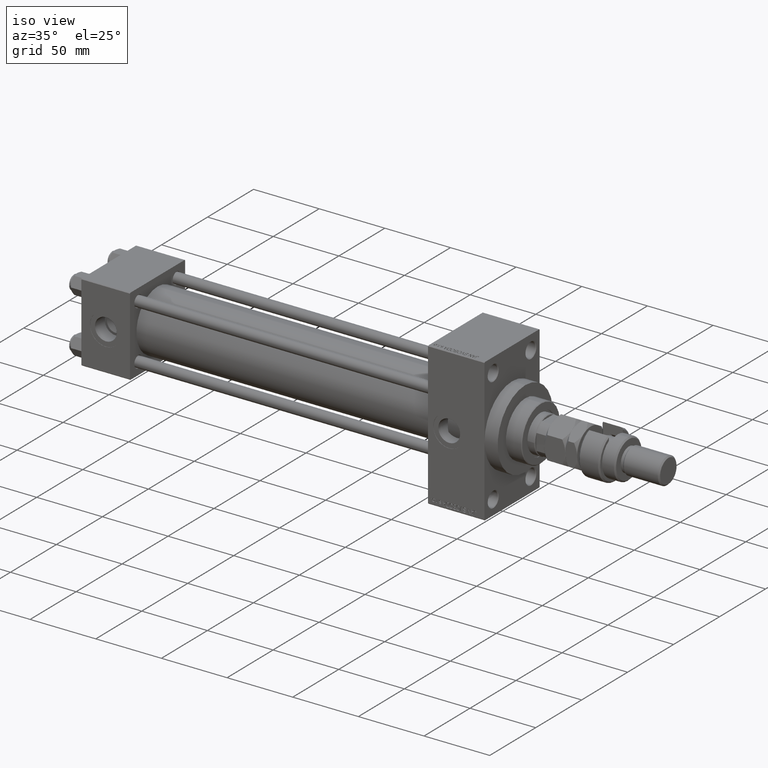
[diagram: clean part render]
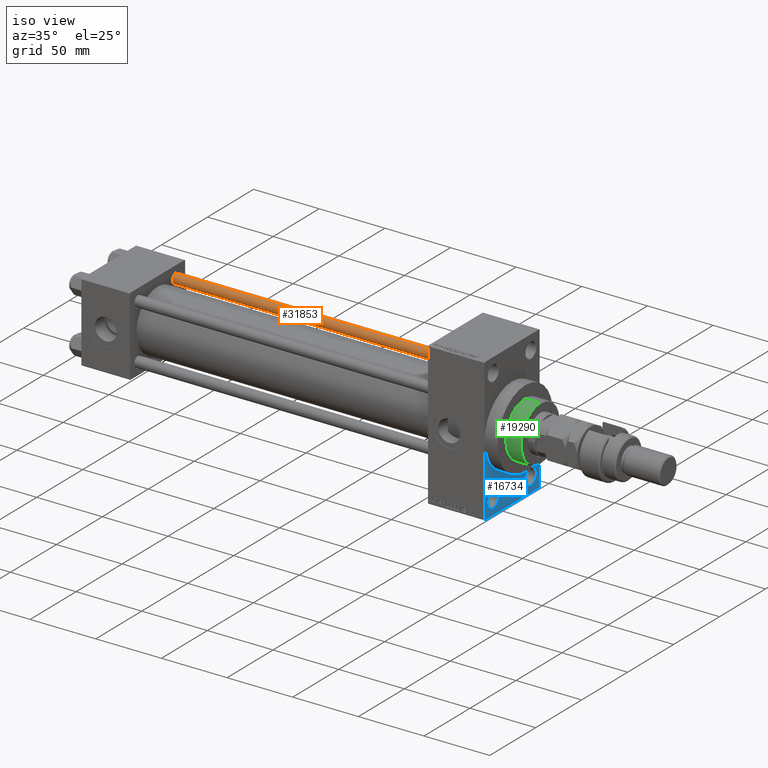
[diagram: same view with three faces highlighted in distinct colors, each labeled with its STEP entity id]
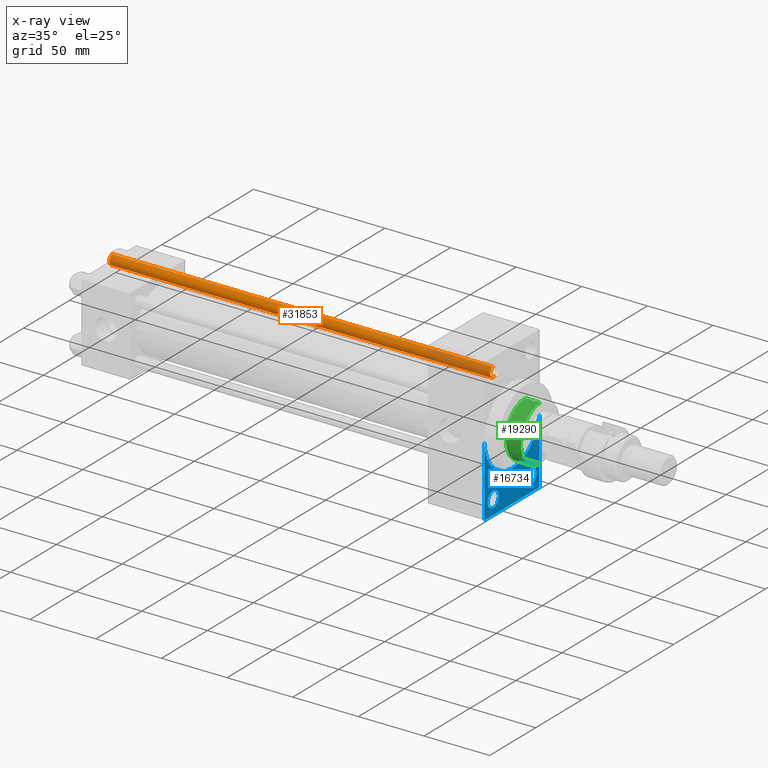
[diagram: x-ray of the same camera — body ghosted, the three highlighted faces saturated]
A machine part, iso view with three faces highlighted in distinct colors.
The next image is the same camera in x-ray (body ghosted, the three faces saturated) — at least one of them is partly hidden behind the body in this view.
Their STEP definitions:

[orange] entity #31853 — the highlighted cylindrical surface (edge-blend (fillet) strip) has radius 4 mm, axis along (-1, -0, 0).
#2759 = CARTESIAN_POINT ( 'NONE',  ( -4.000000000000000000, 0.000000000000000000, 291.0000000000000000 ) ) ;
#2951 = DIRECTION ( 'NONE',  ( -1.000000000000000000, 0.000000000000000000, 0.000000000000000000 ) ) ;
#5008 = ORIENTED_EDGE ( 'NONE', *, *, #33186, .T. ) ;
#6789 = EDGE_CURVE ( 'NONE', #36431, #42416, #36420, .T. ) ;
#10588 = FACE_OUTER_BOUND ( 'NONE', #19961, .T. ) ;
#11181 = LINE ( 'NONE', #2759, #19315 ) ;
#14183 = EDGE_CURVE ( 'NONE', #44750, #23287, #11181, .T. ) ;
#15136 = AXIS2_PLACEMENT_3D ( 'NONE', #21866, #21365, #37449 ) ;
#15359 = CARTESIAN_POINT ( 'NONE',  ( 4.000000000000000000, 4.898587196589412829E-16, 0.5000000000000559552 ) ) ;
#17653 = CIRCLE ( 'NONE', #15136, 4.000000000000000000 ) ;
#19315 = VECTOR ( 'NONE', #43071, 1000.000000000000000 ) ;
#19961 = EDGE_LOOP ( 'NONE', ( #45305, #5008, #47678, #26819 ) ) ;
#20053 = CARTESIAN_POINT ( 'NONE',  ( 4.000000000000000000, 4.898587196589412829E-16, 290.4999999999999432 ) ) ;
#20086 = DIRECTION ( 'NONE',  ( -0.000000000000000000, -0.000000000000000000, -1.000000000000000000 ) ) ;
#20848 = DIRECTION ( 'NONE',  ( 1.000000000000000000, 0.000000000000000000, 0.000000000000000000 ) ) ;
#21112 = CARTESIAN_POINT ( 'NONE',  ( 0.000000000000000000, 0.000000000000000000, 0.5000000000000559552 ) ) ;
#21365 = DIRECTION ( 'NONE',  ( 0.000000000000000000, 0.000000000000000000, -1.000000000000000000 ) ) ;
#21866 = CARTESIAN_POINT ( 'NONE',  ( 0.000000000000000000, 0.000000000000000000, 290.4999999999999432 ) ) ;
#22505 = CARTESIAN_POINT ( 'NONE',  ( -4.000000000000000000, 0.000000000000000000, 0.5000000000000559552 ) ) ;
#23287 = VERTEX_POINT ( 'NONE', #22505 ) ;
#24536 = DIRECTION ( 'NONE',  ( -0.000000000000000000, -0.000000000000000000, 1.000000000000000000 ) ) ;
#24959 = VECTOR ( 'NONE', #20086, 1000.000000000000000 ) ;
#26411 = DIRECTION ( 'NONE',  ( -0.000000000000000000, -0.000000000000000000, -1.000000000000000000 ) ) ;
#26819 = ORIENTED_EDGE ( 'NONE', *, *, #50252, .T. ) ;
#27762 = CARTESIAN_POINT ( 'NONE',  ( 4.000000000000000000, 4.898587196589412829E-16, 291.0000000000000000 ) ) ;
#30091 = AXIS2_PLACEMENT_3D ( 'NONE', #21112, #24536, #20848 ) ;
#31067 = AXIS2_PLACEMENT_3D ( 'NONE', #42221, #26411, #2951 ) ;
#31853 = ADVANCED_FACE ( 'NONE', ( #10588 ), #46173, .T. ) ;
#33186 = EDGE_CURVE ( 'NONE', #36431, #44750, #17653, .T. ) ;
#36420 = LINE ( 'NONE', #27762, #24959 ) ;
#36431 = VERTEX_POINT ( 'NONE', #20053 ) ;
#37449 = DIRECTION ( 'NONE',  ( 1.000000000000000000, 0.000000000000000000, 0.000000000000000000 ) ) ;
#37606 = CARTESIAN_POINT ( 'NONE',  ( -4.000000000000000000, 0.000000000000000000, 290.4999999999999432 ) ) ;
#42221 = CARTESIAN_POINT ( 'NONE',  ( 0.000000000000000000, 0.000000000000000000, 291.0000000000000000 ) ) ;
#42416 = VERTEX_POINT ( 'NONE', #15359 ) ;
#43071 = DIRECTION ( 'NONE',  ( -0.000000000000000000, -0.000000000000000000, -1.000000000000000000 ) ) ;
#44750 = VERTEX_POINT ( 'NONE', #37606 ) ;
#45305 = ORIENTED_EDGE ( 'NONE', *, *, #6789, .F. ) ;
#46072 = CIRCLE ( 'NONE', #30091, 4.000000000000000000 ) ;
#46173 = CYLINDRICAL_SURFACE ( 'NONE', #31067, 4.000000000000000000 ) ;
#47678 = ORIENTED_EDGE ( 'NONE', *, *, #14183, .T. ) ;
#50252 = EDGE_CURVE ( 'NONE', #23287, #42416, #46072, .T. ) ;

[blue] entity #16734 — the highlighted planar face has unit normal (-1, 0, 0).
#416 = EDGE_CURVE ( 'NONE', #17567, #20300, #18921, .T. ) ;
#634 = ORIENTED_EDGE ( 'NONE', *, *, #50058, .T. ) ;
#965 = DIRECTION ( 'NONE',  ( -1.000000000000000000, 0.000000000000000000, -0.000000000000000000 ) ) ;
#1076 = DIRECTION ( 'NONE',  ( -0.000000000000000000, 0.7071067811865474617, 0.7071067811865474617 ) ) ;
#1321 = EDGE_LOOP ( 'NONE', ( #22367, #634 ) ) ;
#2524 = DIRECTION ( 'NONE',  ( 1.000000000000000000, 0.000000000000000000, 0.000000000000000000 ) ) ;
#2809 = EDGE_CURVE ( 'NONE', #20724, #10635, #47017, .T. ) ;
#2884 = VERTEX_POINT ( 'NONE', #50533 ) ;
#3451 = ORIENTED_EDGE ( 'NONE', *, *, #35641, .T. ) ;
#3734 = DIRECTION ( 'NONE',  ( 0.000000000000000000, -1.000000000000000000, -1.156482317317871478E-16 ) ) ;
#4068 = AXIS2_PLACEMENT_3D ( 'NONE', #6998, #2524, #10429 ) ;
#4263 = CIRCLE ( 'NONE', #43849, 5.999999999999977796 ) ;
#4289 = EDGE_CURVE ( 'NONE', #13468, #35162, #35094, .T. ) ;
#4315 = VERTEX_POINT ( 'NONE', #38814 ) ;
#5265 = CARTESIAN_POINT ( 'NONE',  ( 307.0000000000000000, -20.50000000000000000, -43.50000000000000000 ) ) ;
#5432 = DIRECTION ( 'NONE',  ( 0.000000000000000000, 0.000000000000000000, 1.000000000000000000 ) ) ;
#6530 = CARTESIAN_POINT ( 'NONE',  ( 307.0000000000000000, 29.99999999999999645, 54.49999999999999289 ) ) ;
#6531 = DIRECTION ( 'NONE',  ( -0.000000000000000000, 0.000000000000000000, 1.000000000000000000 ) ) ;
#6908 = CARTESIAN_POINT ( 'NONE',  ( 307.0000000000000000, -20.50000000000000000, -49.49999999999997158 ) ) ;
#6976 = AXIS2_PLACEMENT_3D ( 'NONE', #23288, #30687, #51513 ) ;
#6998 = CARTESIAN_POINT ( 'NONE',  ( 307.0000000000000000, 0.000000000000000000, 0.000000000000000000 ) ) ;
#7178 = CARTESIAN_POINT ( 'NONE',  ( 307.0000000000000000, 20.50000000000000000, -43.50000000000000000 ) ) ;
#7179 = DIRECTION ( 'NONE',  ( 0.000000000000000000, 0.000000000000000000, 1.000000000000000000 ) ) ;
#7265 = CARTESIAN_POINT ( 'NONE',  ( 307.0000000000000000, -30.00000000000000000, 0.000000000000000000 ) ) ;
#7611 = ORIENTED_EDGE ( 'NONE', *, *, #23854, .F. ) ;
#9456 = CARTESIAN_POINT ( 'NONE',  ( 307.0000000000000000, 29.99999999999999645, -53.99999999999999289 ) ) ;
#9872 = CIRCLE ( 'NONE', #10707, 5.999999999999977796 ) ;
#10429 = DIRECTION ( 'NONE',  ( 0.000000000000000000, 0.000000000000000000, -1.000000000000000000 ) ) ;
#10510 = EDGE_CURVE ( 'NONE', #26507, #37665, #45293, .T. ) ;
#10624 = EDGE_CURVE ( 'NONE', #20724, #4315, #13312, .T. ) ;
#10635 = VERTEX_POINT ( 'NONE', #10946 ) ;
#10707 = AXIS2_PLACEMENT_3D ( 'NONE', #7178, #43015, #43542 ) ;
#10946 = CARTESIAN_POINT ( 'NONE',  ( 307.0000000000000000, -30.00000000000000000, -54.00000000000001421 ) ) ;
#11115 = CARTESIAN_POINT ( 'NONE',  ( 307.0000000000000000, 29.99999999999999645, -54.49999999999999289 ) ) ;
#11206 = ORIENTED_EDGE ( 'NONE', *, *, #2809, .T. ) ;
#12343 = AXIS2_PLACEMENT_3D ( 'NONE', #47517, #26432, #7179 ) ;
#12773 = CARTESIAN_POINT ( 'NONE',  ( 307.0000000000000000, -20.50000000000000000, -37.50000000000002132 ) ) ;
#13175 = CARTESIAN_POINT ( 'NONE',  ( 307.0000000000000000, 29.99999999999999645, -53.99999999999999289 ) ) ;
#13312 = CIRCLE ( 'NONE', #4068, 30.00000000000000000 ) ;
#13468 = VERTEX_POINT ( 'NONE', #24115 ) ;
#13563 = VECTOR ( 'NONE', #1076, 1000.000000000000114 ) ;
#13911 = FACE_BOUND ( 'NONE', #48513, .T. ) ;
#14421 = DIRECTION ( 'NONE',  ( -1.000000000000000000, 0.000000000000000000, -0.000000000000000000 ) ) ;
#15371 = CARTESIAN_POINT ( 'NONE',  ( 307.0000000000000000, -30.00000000000000000, 54.50000000000000000 ) ) ;
#16340 = DIRECTION ( 'NONE',  ( 0.000000000000000000, 0.000000000000000000, 1.000000000000000000 ) ) ;
#16734 = ADVANCED_FACE ( 'NONE', ( #13911, #50569, #30270 ), #42641, .F. ) ;
#16897 = VECTOR ( 'NONE', #40345, 1000.000000000000000 ) ;
#17030 = CARTESIAN_POINT ( 'NONE',  ( 307.0000000000000000, -20.50000000000000000, -43.50000000000000000 ) ) ;
#17100 = EDGE_CURVE ( 'NONE', #10635, #22114, #36395, .T. ) ;
#17182 = EDGE_CURVE ( 'NONE', #2884, #20300, #25317, .T. ) ;
#17567 = VERTEX_POINT ( 'NONE', #19686 ) ;
#18921 = LINE ( 'NONE', #6530, #50911 ) ;
#19202 = CARTESIAN_POINT ( 'NONE',  ( 307.0000000000000000, -29.50000000000002842, -54.50000000000000000 ) ) ;
#19663 = ORIENTED_EDGE ( 'NONE', *, *, #17182, .T. ) ;
#19686 = CARTESIAN_POINT ( 'NONE',  ( 307.0000000000000000, 30.00000000000000000, 0.000000000000000000 ) ) ;
#20300 = VERTEX_POINT ( 'NONE', #9456 ) ;
#20724 = VERTEX_POINT ( 'NONE', #7265 ) ;
#22114 = VERTEX_POINT ( 'NONE', #19202 ) ;
#22367 = ORIENTED_EDGE ( 'NONE', *, *, #4289, .T. ) ;
#22645 = ORIENTED_EDGE ( 'NONE', *, *, #43154, .F. ) ;
#23288 = CARTESIAN_POINT ( 'NONE',  ( 307.0000000000000000, 0.000000000000000000, 0.000000000000000000 ) ) ;
#23854 = EDGE_CURVE ( 'NONE', #2884, #22114, #35112, .T. ) ;
#24115 = CARTESIAN_POINT ( 'NONE',  ( 307.0000000000000000, 20.50000000000000000, -49.49999999999997158 ) ) ;
#24262 = CARTESIAN_POINT ( 'NONE',  ( 307.0000000000000000, -29.50000000000002842, -54.50000000000000000 ) ) ;
#25317 = LINE ( 'NONE', #13175, #13563 ) ;
#25747 = VECTOR ( 'NONE', #35164, 1000.000000000000000 ) ;
#26432 = DIRECTION ( 'NONE',  ( -1.000000000000000000, 0.000000000000000000, -0.000000000000000000 ) ) ;
#26507 = VERTEX_POINT ( 'NONE', #12773 ) ;
#29321 = AXIS2_PLACEMENT_3D ( 'NONE', #17030, #965, #5432 ) ;
#30270 = FACE_OUTER_BOUND ( 'NONE', #31413, .T. ) ;
#30687 = DIRECTION ( 'NONE',  ( 1.000000000000000000, 0.000000000000000000, 0.000000000000000000 ) ) ;
#31413 = EDGE_LOOP ( 'NONE', ( #11206, #43262, #7611, #19663, #50915, #22645, #32106 ) ) ;
#32106 = ORIENTED_EDGE ( 'NONE', *, *, #10624, .F. ) ;
#35094 = CIRCLE ( 'NONE', #12343, 5.999999999999977796 ) ;
#35112 = LINE ( 'NONE', #11115, #40628 ) ;
#35162 = VERTEX_POINT ( 'NONE', #44916 ) ;
#35164 = DIRECTION ( 'NONE',  ( 0.000000000000000000, 0.000000000000000000, -1.000000000000000000 ) ) ;
#35641 = EDGE_CURVE ( 'NONE', #37665, #26507, #4263, .T. ) ;
#36274 = AXIS2_PLACEMENT_3D ( 'NONE', #46339, #14421, #6531 ) ;
#36395 = LINE ( 'NONE', #24262, #16897 ) ;
#36581 = ORIENTED_EDGE ( 'NONE', *, *, #10510, .T. ) ;
#37665 = VERTEX_POINT ( 'NONE', #6908 ) ;
#38814 = CARTESIAN_POINT ( 'NONE',  ( 307.0000000000000000, 3.673940397442059178E-15, -30.00000000000000000 ) ) ;
#40345 = DIRECTION ( 'NONE',  ( 0.000000000000000000, 0.7071067811865352493, -0.7071067811865597852 ) ) ;
#40628 = VECTOR ( 'NONE', #3734, 1000.000000000000000 ) ;
#42641 = PLANE ( 'NONE',  #36274 ) ;
#43015 = DIRECTION ( 'NONE',  ( -1.000000000000000000, 0.000000000000000000, -0.000000000000000000 ) ) ;
#43154 = EDGE_CURVE ( 'NONE', #4315, #17567, #51627, .T. ) ;
#43164 = DIRECTION ( 'NONE',  ( 0.000000000000000000, 0.000000000000000000, -1.000000000000000000 ) ) ;
#43262 = ORIENTED_EDGE ( 'NONE', *, *, #17100, .T. ) ;
#43542 = DIRECTION ( 'NONE',  ( 0.000000000000000000, 0.000000000000000000, 1.000000000000000000 ) ) ;
#43849 = AXIS2_PLACEMENT_3D ( 'NONE', #5265, #45055, #16340 ) ;
#44916 = CARTESIAN_POINT ( 'NONE',  ( 307.0000000000000000, 20.50000000000000000, -37.50000000000002132 ) ) ;
#45055 = DIRECTION ( 'NONE',  ( -1.000000000000000000, 0.000000000000000000, -0.000000000000000000 ) ) ;
#45293 = CIRCLE ( 'NONE', #29321, 5.999999999999977796 ) ;
#46339 = CARTESIAN_POINT ( 'NONE',  ( 307.0000000000000000, 0.000000000000000000, 0.000000000000000000 ) ) ;
#47017 = LINE ( 'NONE', #15371, #25747 ) ;
#47517 = CARTESIAN_POINT ( 'NONE',  ( 307.0000000000000000, 20.50000000000000000, -43.50000000000000000 ) ) ;
#48513 = EDGE_LOOP ( 'NONE', ( #3451, #36581 ) ) ;
#50058 = EDGE_CURVE ( 'NONE', #35162, #13468, #9872, .T. ) ;
#50533 = CARTESIAN_POINT ( 'NONE',  ( 307.0000000000000000, 29.49999999999999645, -54.49999999999999289 ) ) ;
#50569 = FACE_BOUND ( 'NONE', #1321, .T. ) ;
#50911 = VECTOR ( 'NONE', #43164, 1000.000000000000000 ) ;
#50915 = ORIENTED_EDGE ( 'NONE', *, *, #416, .F. ) ;
#51513 = DIRECTION ( 'NONE',  ( 0.000000000000000000, 0.000000000000000000, -1.000000000000000000 ) ) ;
#51627 = CIRCLE ( 'NONE', #6976, 30.00000000000000000 ) ;

[green] entity #19290 — the highlighted cylindrical surface (edge-blend (fillet) strip) has radius 21 mm, axis along (-1, 0, 0).
#113 = DIRECTION ( 'NONE',  ( -1.000000000000000000, 0.000000000000000000, 0.000000000000000000 ) ) ;
#658 = EDGE_CURVE ( 'NONE', #19016, #17235, #1225, .T. ) ;
#737 = VECTOR ( 'NONE', #21093, 1000.000000000000000 ) ;
#1225 = LINE ( 'NONE', #42057, #34914 ) ;
#3786 = VERTEX_POINT ( 'NONE', #39256 ) ;
#5022 = CARTESIAN_POINT ( 'NONE',  ( -21.00000000000000000, 0.000000000000000000, 43.25999999999999801 ) ) ;
#9043 = FACE_OUTER_BOUND ( 'NONE', #23722, .T. ) ;
#14417 = DIRECTION ( 'NONE',  ( 0.000000000000000000, 0.000000000000000000, 1.000000000000000000 ) ) ;
#15092 = VERTEX_POINT ( 'NONE', #50816 ) ;
#17167 = ORIENTED_EDGE ( 'NONE', *, *, #658, .F. ) ;
#17235 = VERTEX_POINT ( 'NONE', #5022 ) ;
#19016 = VERTEX_POINT ( 'NONE', #37836 ) ;
#19290 = ADVANCED_FACE ( 'NONE', ( #9043 ), #24340, .T. ) ;
#19736 = ORIENTED_EDGE ( 'NONE', *, *, #37452, .T. ) ;
#21093 = DIRECTION ( 'NONE',  ( -0.000000000000000000, -0.000000000000000000, -1.000000000000000000 ) ) ;
#21419 = DIRECTION ( 'NONE',  ( 1.000000000000000000, 0.000000000000000000, 0.000000000000000000 ) ) ;
#21929 = DIRECTION ( 'NONE',  ( 0.000000000000000000, 0.000000000000000000, -1.000000000000000000 ) ) ;
#22850 = CIRCLE ( 'NONE', #50680, 21.00000000000000000 ) ;
#23722 = EDGE_LOOP ( 'NONE', ( #19736, #42029, #49889, #17167 ) ) ;
#24340 = CYLINDRICAL_SURFACE ( 'NONE', #51426, 21.00000000000000000 ) ;
#25376 = CARTESIAN_POINT ( 'NONE',  ( 0.000000000000000000, 0.000000000000000000, 54.75999999999999091 ) ) ;
#30266 = DIRECTION ( 'NONE',  ( 1.000000000000000000, 0.000000000000000000, 0.000000000000000000 ) ) ;
#31575 = EDGE_CURVE ( 'NONE', #3786, #15092, #44803, .T. ) ;
#34914 = VECTOR ( 'NONE', #50239, 1000.000000000000000 ) ;
#36216 = DIRECTION ( 'NONE',  ( -0.000000000000000000, -0.000000000000000000, -1.000000000000000000 ) ) ;
#36433 = CIRCLE ( 'NONE', #39721, 21.00000000000000000 ) ;
#37169 = CARTESIAN_POINT ( 'NONE',  ( 21.00000000000000000, 2.571758278209441661E-15, 55.26000000000000512 ) ) ;
#37452 = EDGE_CURVE ( 'NONE', #19016, #3786, #22850, .T. ) ;
#37836 = CARTESIAN_POINT ( 'NONE',  ( -21.00000000000000000, 0.000000000000000000, 54.75999999999999091 ) ) ;
#39256 = CARTESIAN_POINT ( 'NONE',  ( 21.00000000000000000, 2.571758278209441661E-15, 54.75999999999999091 ) ) ;
#39721 = AXIS2_PLACEMENT_3D ( 'NONE', #50302, #14417, #30266 ) ;
#40420 = CARTESIAN_POINT ( 'NONE',  ( 0.000000000000000000, 0.000000000000000000, 55.26000000000000512 ) ) ;
#40892 = EDGE_CURVE ( 'NONE', #15092, #17235, #36433, .T. ) ;
#42029 = ORIENTED_EDGE ( 'NONE', *, *, #31575, .T. ) ;
#42057 = CARTESIAN_POINT ( 'NONE',  ( -21.00000000000000000, 0.000000000000000000, 55.26000000000000512 ) ) ;
#44803 = LINE ( 'NONE', #37169, #737 ) ;
#49889 = ORIENTED_EDGE ( 'NONE', *, *, #40892, .T. ) ;
#50239 = DIRECTION ( 'NONE',  ( -0.000000000000000000, -0.000000000000000000, -1.000000000000000000 ) ) ;
#50302 = CARTESIAN_POINT ( 'NONE',  ( 0.000000000000000000, 0.000000000000000000, 43.25999999999999801 ) ) ;
#50680 = AXIS2_PLACEMENT_3D ( 'NONE', #25376, #21929, #21419 ) ;
#50816 = CARTESIAN_POINT ( 'NONE',  ( 21.00000000000000000, 2.571758278209441661E-15, 43.25999999999999801 ) ) ;
#51426 = AXIS2_PLACEMENT_3D ( 'NONE', #40420, #36216, #113 ) ;